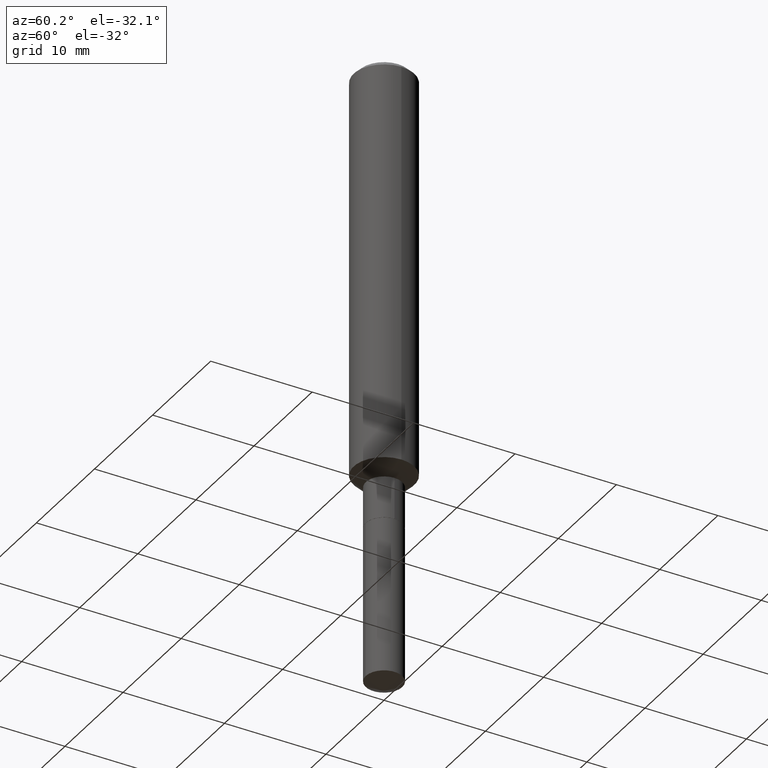
[diagram: clean part render]
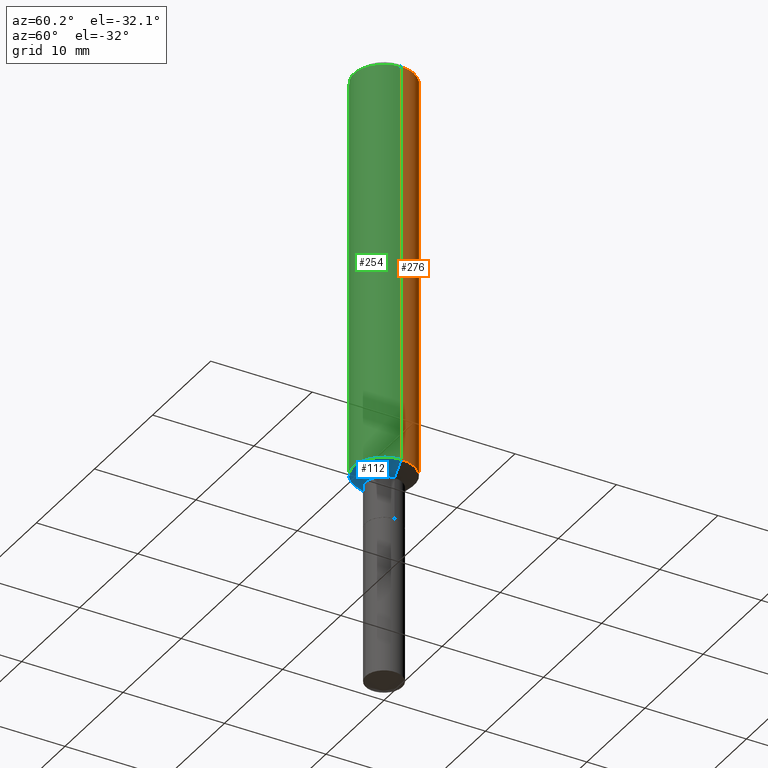
[diagram: same view with three faces highlighted in distinct colors, each labeled with its STEP entity id]
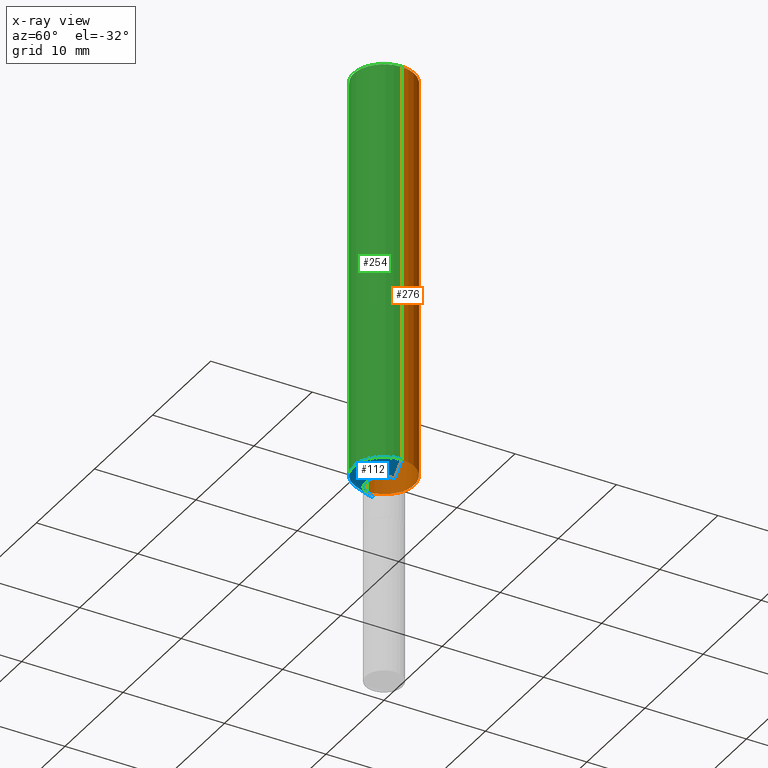
[diagram: x-ray of the same camera — body ghosted, the three highlighted faces saturated]
A machine part, auxiliary view with three faces highlighted in distinct colors.
The next image is the same camera in x-ray (body ghosted, the three faces saturated) — at least one of them is partly hidden behind the body in this view.
Their STEP definitions:

[orange] entity #276 — the highlighted cylindrical surface (edge-blend (fillet) strip) has radius 2.9997 mm, axis along (-0, 0, 1).
#1 = VECTOR ( 'NONE', #182, 39.37007874015748143 ) ;
#5 = DIRECTION ( 'NONE',  ( 1.000000000000000000, -6.982962677686266711E-15, 0.000000000000000000 ) ) ;
#24 = ORIENTED_EDGE ( 'NONE', *, *, #352, .F. ) ;
#26 = ORIENTED_EDGE ( 'NONE', *, *, #389, .T. ) ;
#37 = CARTESIAN_POINT ( 'NONE',  ( 5.776197320209326656E-31, -8.246878922347558061E-17, -0.02362000000000013741 ) ) ;
#82 = VERTEX_POINT ( 'NONE', #487 ) ;
#94 = DIRECTION ( 'NONE',  ( -2.445468806185136877E-29, 3.491481338843145188E-15, 1.000000000000000000 ) ) ;
#100 = LINE ( 'NONE', #366, #1 ) ;
#104 = CIRCLE ( 'NONE', #280, 0.1181000000000001909 ) ;
#108 = CARTESIAN_POINT ( 'NONE',  ( 0.1180999999999999966, -9.071566814582237199E-16, -0.02362000000000013741 ) ) ;
#123 = ORIENTED_EDGE ( 'NONE', *, *, #302, .T. ) ;
#156 = DIRECTION ( 'NONE',  ( -2.445468806185136597E-29, 3.491481338843145583E-15, 1.000000000000000000 ) ) ;
#174 = CARTESIAN_POINT ( 'NONE',  ( -0.1181000000000001077, 8.391509709326790846E-16, -5.809262341591049389E-30 ) ) ;
#178 = EDGE_CURVE ( 'NONE', #337, #193, #180, .T. ) ;
#180 = CIRCLE ( 'NONE', #454, 0.1180999999999999966 ) ;
#182 = DIRECTION ( 'NONE',  ( -2.445468806185136877E-29, 3.491481338843145188E-15, 1.000000000000000000 ) ) ;
#186 = ORIENTED_EDGE ( 'NONE', *, *, #178, .F. ) ;
#188 = CARTESIAN_POINT ( 'NONE',  ( 3.875945784363130836E-29, -5.533823347999441494E-15, -1.584949999999999415 ) ) ;
#193 = VERTEX_POINT ( 'NONE', #463 ) ;
#216 = VECTOR ( 'NONE', #94, 39.37007874015748143 ) ;
#238 = DIRECTION ( 'NONE',  ( -2.445468806185136597E-29, 3.491481338843145583E-15, 1.000000000000000000 ) ) ;
#248 = LINE ( 'NONE', #174, #216 ) ;
#268 = DIRECTION ( 'NONE',  ( 1.000000000000000000, -6.982962677686269077E-15, 0.000000000000000000 ) ) ;
#274 = EDGE_LOOP ( 'NONE', ( #26, #123, #186, #24 ) ) ;
#276 = ADVANCED_FACE ( 'NONE', ( #278 ), #428, .T. ) ;
#278 = FACE_OUTER_BOUND ( 'NONE', #274, .T. ) ;
#280 = AXIS2_PLACEMENT_3D ( 'NONE', #188, #156, #268 ) ;
#281 = DIRECTION ( 'NONE',  ( 1.000000000000000000, -6.982962677686266711E-15, 4.876176775795935793E-29 ) ) ;
#302 = EDGE_CURVE ( 'NONE', #354, #193, #248, .T. ) ;
#324 = DIRECTION ( 'NONE',  ( -2.445468806185136597E-29, 3.491481338843145583E-15, 1.000000000000000000 ) ) ;
#336 = CARTESIAN_POINT ( 'NONE',  ( -0.1181000000000001909, -4.694672377066761719E-15, -1.584949999999999415 ) ) ;
#337 = VERTEX_POINT ( 'NONE', #108 ) ;
#352 = EDGE_CURVE ( 'NONE', #82, #337, #100, .T. ) ;
#354 = VERTEX_POINT ( 'NONE', #336 ) ;
#366 = CARTESIAN_POINT ( 'NONE',  ( 0.1181000000000001077, -8.246878922347488542E-16, 5.758764772215005345E-30 ) ) ;
#389 = EDGE_CURVE ( 'NONE', #82, #354, #104, .T. ) ;
#405 = AXIS2_PLACEMENT_3D ( 'NONE', #468, #324, #281 ) ;
#428 = CYLINDRICAL_SURFACE ( 'NONE', #405, 0.1181000000000001077 ) ;
#454 = AXIS2_PLACEMENT_3D ( 'NONE', #37, #238, #5 ) ;
#463 = CARTESIAN_POINT ( 'NONE',  ( -0.1180999999999999966, -1.968995097678779095E-15, -0.02362000000000013741 ) ) ;
#468 = CARTESIAN_POINT ( 'NONE',  ( 0.000000000000000000, 0.000000000000000000, 0.000000000000000000 ) ) ;
#487 = CARTESIAN_POINT ( 'NONE',  ( 0.1181000000000001909, -6.358511240234191334E-15, -1.584949999999999415 ) ) ;

[blue] entity #112 — the highlighted conical surface has half-angle 45 deg.
#29 = VECTOR ( 'NONE', #410, 39.37007874015748143 ) ;
#31 = LINE ( 'NONE', #264, #29 ) ;
#32 = EDGE_CURVE ( 'NONE', #65, #373, #286, .T. ) ;
#40 = LINE ( 'NONE', #385, #388 ) ;
#47 = CIRCLE ( 'NONE', #332, 0.1181000000000001909 ) ;
#61 = CARTESIAN_POINT ( 'NONE',  ( 3.991494185455378715E-29, -5.698795841259781075E-15, -1.632199999999999651 ) ) ;
#65 = VERTEX_POINT ( 'NONE', #266 ) ;
#67 = EDGE_CURVE ( 'NONE', #373, #82, #31, .T. ) ;
#82 = VERTEX_POINT ( 'NONE', #487 ) ;
#103 = DIRECTION ( 'NONE',  ( -2.445468806185136597E-29, 3.491481338843145583E-15, 1.000000000000000000 ) ) ;
#112 = ADVANCED_FACE ( 'NONE', ( #259 ), #226, .T. ) ;
#125 = DIRECTION ( 'NONE',  ( 1.000000000000000000, -6.982962677686269077E-15, 0.000000000000000000 ) ) ;
#139 = AXIS2_PLACEMENT_3D ( 'NONE', #61, #367, #183 ) ;
#142 = CARTESIAN_POINT ( 'NONE',  ( 3.991494185455378715E-29, -5.698795841259781075E-15, -1.632199999999999651 ) ) ;
#165 = DIRECTION ( 'NONE',  ( -0.7071067811865479058, 7.493145998870355738E-15, 0.7071067811865471286 ) ) ;
#170 = EDGE_CURVE ( 'NONE', #65, #354, #40, .T. ) ;
#183 = DIRECTION ( 'NONE',  ( 1.000000000000000000, -6.982962677686265133E-15, 0.000000000000000000 ) ) ;
#192 = AXIS2_PLACEMENT_3D ( 'NONE', #142, #103, #221 ) ;
#219 = ORIENTED_EDGE ( 'NONE', *, *, #67, .T. ) ;
#221 = DIRECTION ( 'NONE',  ( 1.000000000000000000, -6.982962677686265133E-15, 0.000000000000000000 ) ) ;
#226 = CONICAL_SURFACE ( 'NONE', #139, 0.07084999999999998244, 0.7853981633974488341 ) ;
#227 = DIRECTION ( 'NONE',  ( -2.445468806185136597E-29, 3.491481338843145583E-15, 1.000000000000000000 ) ) ;
#259 = FACE_OUTER_BOUND ( 'NONE', #349, .T. ) ;
#264 = CARTESIAN_POINT ( 'NONE',  ( 0.07084999999999998244, -6.193538746973852542E-15, -1.632199999999999651 ) ) ;
#266 = CARTESIAN_POINT ( 'NONE',  ( -0.07084999999999998244, -5.479059171754755297E-15, -1.632199999999999651 ) ) ;
#286 = CIRCLE ( 'NONE', #192, 0.07084999999999998244 ) ;
#332 = AXIS2_PLACEMENT_3D ( 'NONE', #461, #227, #125 ) ;
#336 = CARTESIAN_POINT ( 'NONE',  ( -0.1181000000000001909, -4.694672377066761719E-15, -1.584949999999999415 ) ) ;
#349 = EDGE_LOOP ( 'NONE', ( #423, #446, #219, #383 ) ) ;
#354 = VERTEX_POINT ( 'NONE', #336 ) ;
#367 = DIRECTION ( 'NONE',  ( -2.445468806185136597E-29, 3.491481338843145583E-15, 1.000000000000000000 ) ) ;
#373 = VERTEX_POINT ( 'NONE', #391 ) ;
#383 = ORIENTED_EDGE ( 'NONE', *, *, #473, .F. ) ;
#385 = CARTESIAN_POINT ( 'NONE',  ( -0.07084999999999998244, -5.195376312973749528E-15, -1.632199999999999651 ) ) ;
#388 = VECTOR ( 'NONE', #165, 39.37007874015748143 ) ;
#391 = CARTESIAN_POINT ( 'NONE',  ( 0.07084999999999998244, -6.193538746973852542E-15, -1.632199999999999651 ) ) ;
#410 = DIRECTION ( 'NONE',  ( 0.7071067811865479058, -2.468850131082261005E-15, 0.7071067811865471286 ) ) ;
#423 = ORIENTED_EDGE ( 'NONE', *, *, #170, .F. ) ;
#446 = ORIENTED_EDGE ( 'NONE', *, *, #32, .T. ) ;
#461 = CARTESIAN_POINT ( 'NONE',  ( 3.875945784363130836E-29, -5.533823347999441494E-15, -1.584949999999999415 ) ) ;
#473 = EDGE_CURVE ( 'NONE', #354, #82, #47, .T. ) ;
#487 = CARTESIAN_POINT ( 'NONE',  ( 0.1181000000000001909, -6.358511240234191334E-15, -1.584949999999999415 ) ) ;

[green] entity #254 — the highlighted cylindrical surface (edge-blend (fillet) strip) has radius 2.9997 mm, axis along (-0, 0, 1).
#1 = VECTOR ( 'NONE', #182, 39.37007874015748143 ) ;
#34 = ORIENTED_EDGE ( 'NONE', *, *, #352, .T. ) ;
#36 = ORIENTED_EDGE ( 'NONE', *, *, #302, .F. ) ;
#47 = CIRCLE ( 'NONE', #332, 0.1181000000000001909 ) ;
#52 = CARTESIAN_POINT ( 'NONE',  ( 0.000000000000000000, 0.000000000000000000, 0.000000000000000000 ) ) ;
#54 = AXIS2_PLACEMENT_3D ( 'NONE', #441, #414, #101 ) ;
#75 = EDGE_CURVE ( 'NONE', #193, #337, #362, .T. ) ;
#82 = VERTEX_POINT ( 'NONE', #487 ) ;
#94 = DIRECTION ( 'NONE',  ( -2.445468806185136877E-29, 3.491481338843145188E-15, 1.000000000000000000 ) ) ;
#100 = LINE ( 'NONE', #366, #1 ) ;
#101 = DIRECTION ( 'NONE',  ( 1.000000000000000000, -6.982962677686266711E-15, 0.000000000000000000 ) ) ;
#108 = CARTESIAN_POINT ( 'NONE',  ( 0.1180999999999999966, -9.071566814582237199E-16, -0.02362000000000013741 ) ) ;
#125 = DIRECTION ( 'NONE',  ( 1.000000000000000000, -6.982962677686269077E-15, 0.000000000000000000 ) ) ;
#135 = FACE_OUTER_BOUND ( 'NONE', #427, .T. ) ;
#140 = ORIENTED_EDGE ( 'NONE', *, *, #473, .T. ) ;
#174 = CARTESIAN_POINT ( 'NONE',  ( -0.1181000000000001077, 8.391509709326790846E-16, -5.809262341591049389E-30 ) ) ;
#182 = DIRECTION ( 'NONE',  ( -2.445468806185136877E-29, 3.491481338843145188E-15, 1.000000000000000000 ) ) ;
#189 = ORIENTED_EDGE ( 'NONE', *, *, #75, .F. ) ;
#193 = VERTEX_POINT ( 'NONE', #463 ) ;
#216 = VECTOR ( 'NONE', #94, 39.37007874015748143 ) ;
#227 = DIRECTION ( 'NONE',  ( -2.445468806185136597E-29, 3.491481338843145583E-15, 1.000000000000000000 ) ) ;
#248 = LINE ( 'NONE', #174, #216 ) ;
#254 = ADVANCED_FACE ( 'NONE', ( #135 ), #330, .T. ) ;
#302 = EDGE_CURVE ( 'NONE', #354, #193, #248, .T. ) ;
#330 = CYLINDRICAL_SURFACE ( 'NONE', #460, 0.1181000000000001077 ) ;
#332 = AXIS2_PLACEMENT_3D ( 'NONE', #461, #227, #125 ) ;
#336 = CARTESIAN_POINT ( 'NONE',  ( -0.1181000000000001909, -4.694672377066761719E-15, -1.584949999999999415 ) ) ;
#337 = VERTEX_POINT ( 'NONE', #108 ) ;
#352 = EDGE_CURVE ( 'NONE', #82, #337, #100, .T. ) ;
#354 = VERTEX_POINT ( 'NONE', #336 ) ;
#357 = DIRECTION ( 'NONE',  ( 1.000000000000000000, -6.982962677686266711E-15, 4.876176775795935793E-29 ) ) ;
#362 = CIRCLE ( 'NONE', #54, 0.1180999999999999966 ) ;
#366 = CARTESIAN_POINT ( 'NONE',  ( 0.1181000000000001077, -8.246878922347488542E-16, 5.758764772215005345E-30 ) ) ;
#414 = DIRECTION ( 'NONE',  ( -2.445468806185136597E-29, 3.491481338843145583E-15, 1.000000000000000000 ) ) ;
#427 = EDGE_LOOP ( 'NONE', ( #36, #140, #34, #189 ) ) ;
#441 = CARTESIAN_POINT ( 'NONE',  ( 5.776197320209326656E-31, -8.246878922347558061E-17, -0.02362000000000013741 ) ) ;
#460 = AXIS2_PLACEMENT_3D ( 'NONE', #52, #476, #357 ) ;
#461 = CARTESIAN_POINT ( 'NONE',  ( 3.875945784363130836E-29, -5.533823347999441494E-15, -1.584949999999999415 ) ) ;
#463 = CARTESIAN_POINT ( 'NONE',  ( -0.1180999999999999966, -1.968995097678779095E-15, -0.02362000000000013741 ) ) ;
#473 = EDGE_CURVE ( 'NONE', #354, #82, #47, .T. ) ;
#476 = DIRECTION ( 'NONE',  ( -2.445468806185136597E-29, 3.491481338843145583E-15, 1.000000000000000000 ) ) ;
#487 = CARTESIAN_POINT ( 'NONE',  ( 0.1181000000000001909, -6.358511240234191334E-15, -1.584949999999999415 ) ) ;